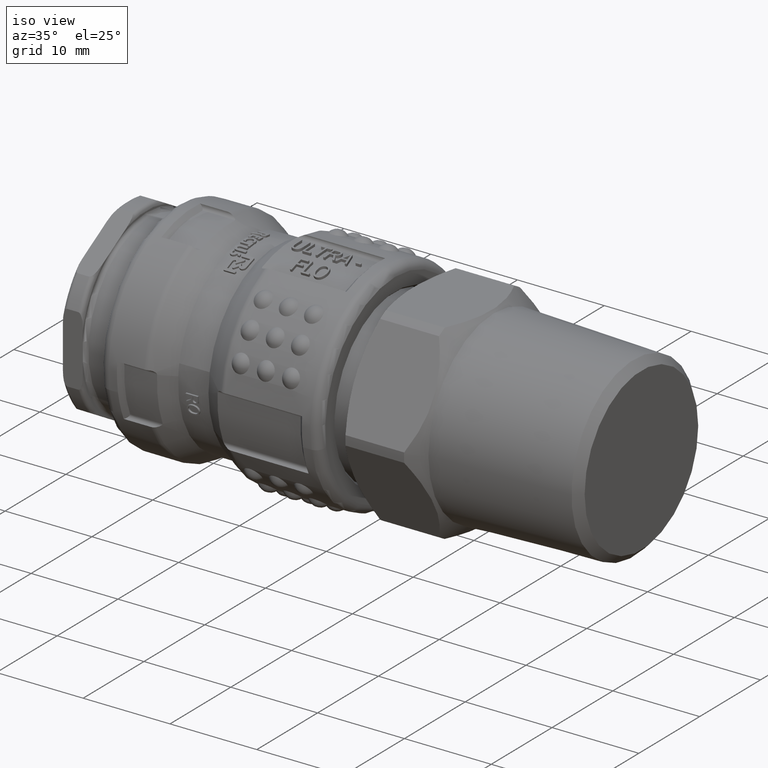
[diagram: clean part render]
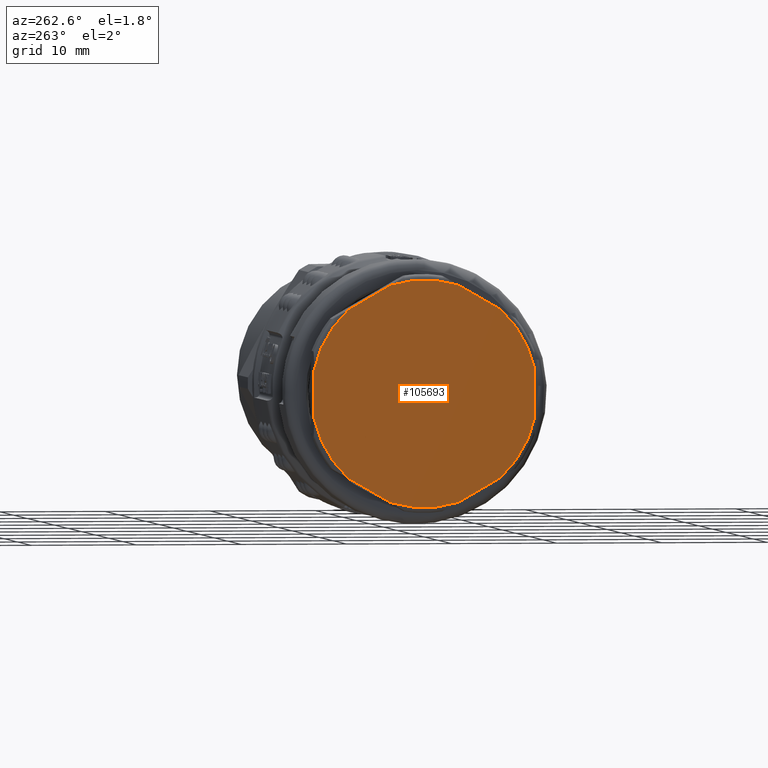
[diagram: tour spotlight — one face highlighted and labeled with its STEP entity id]
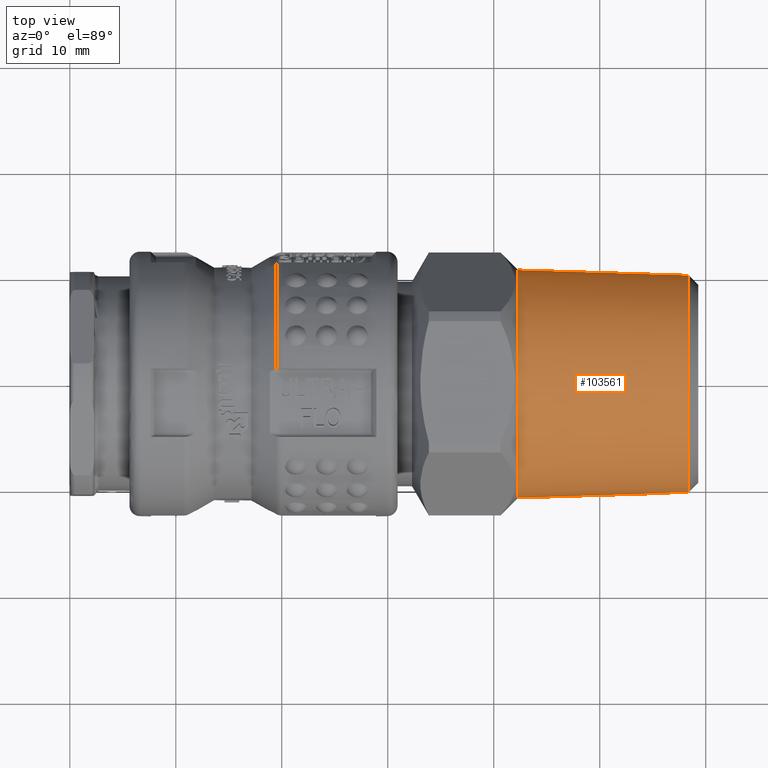
[diagram: tour spotlight — one face highlighted and labeled with its STEP entity id]
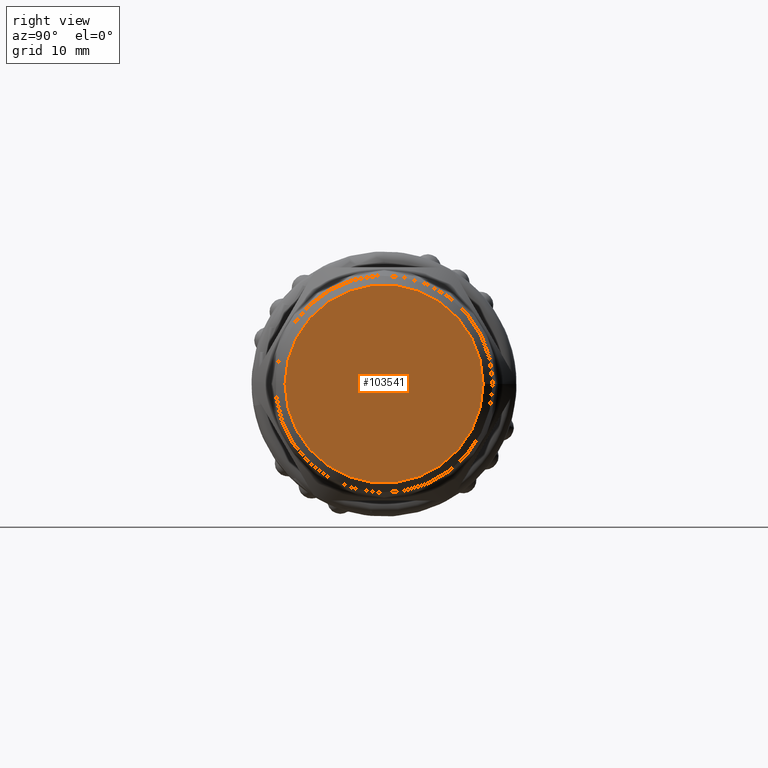
[diagram: tour spotlight — one face highlighted and labeled with its STEP entity id]
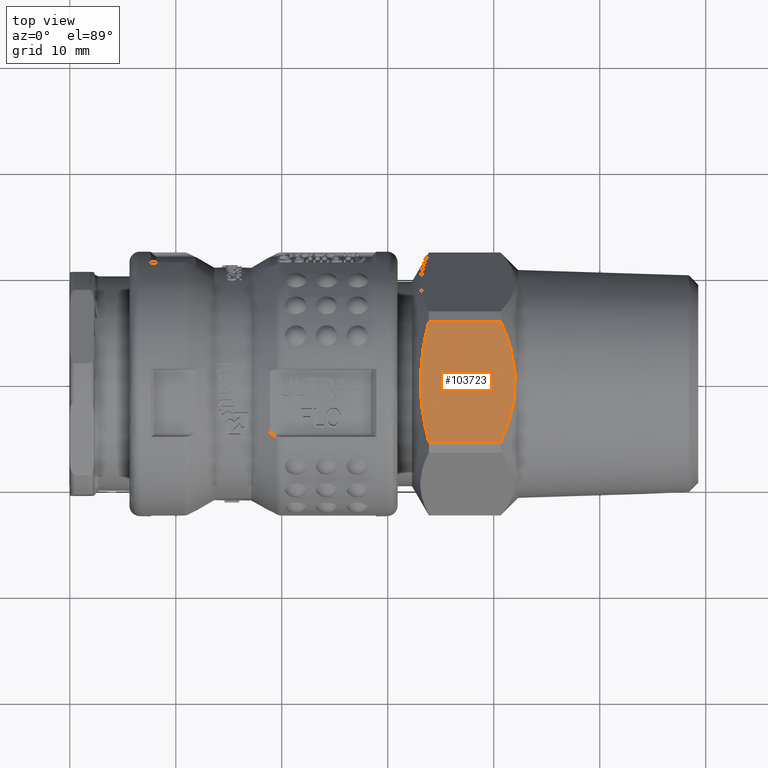
[diagram: tour spotlight — one face highlighted and labeled with its STEP entity id]
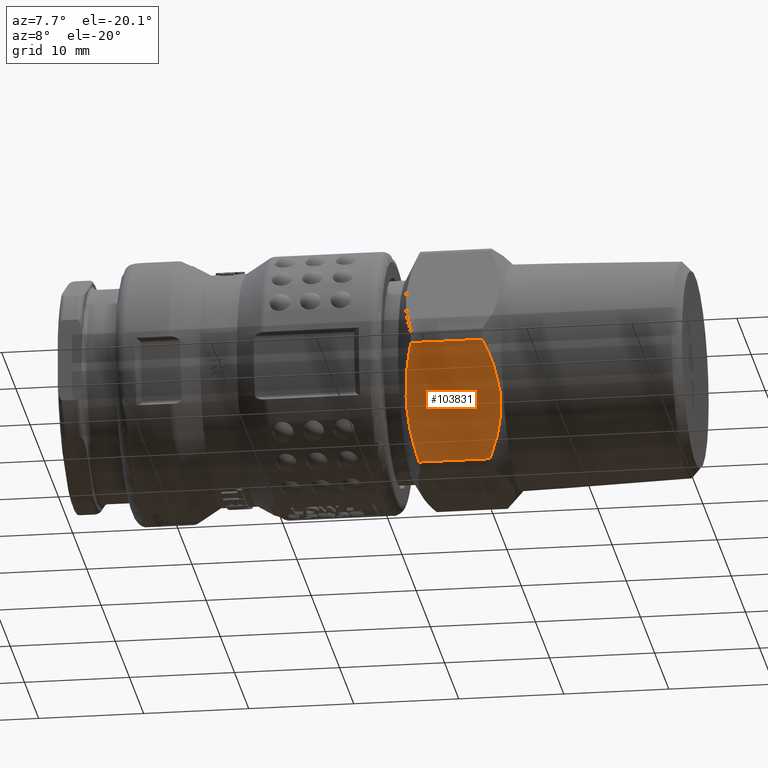
[diagram: tour spotlight — one face highlighted and labeled with its STEP entity id]
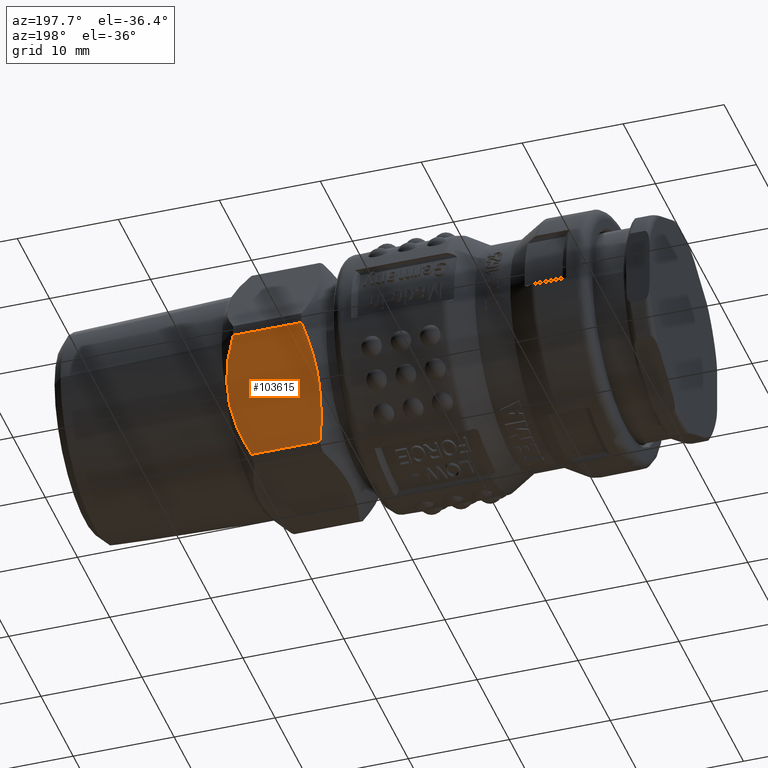
[diagram: tour spotlight — one face highlighted and labeled with its STEP entity id]
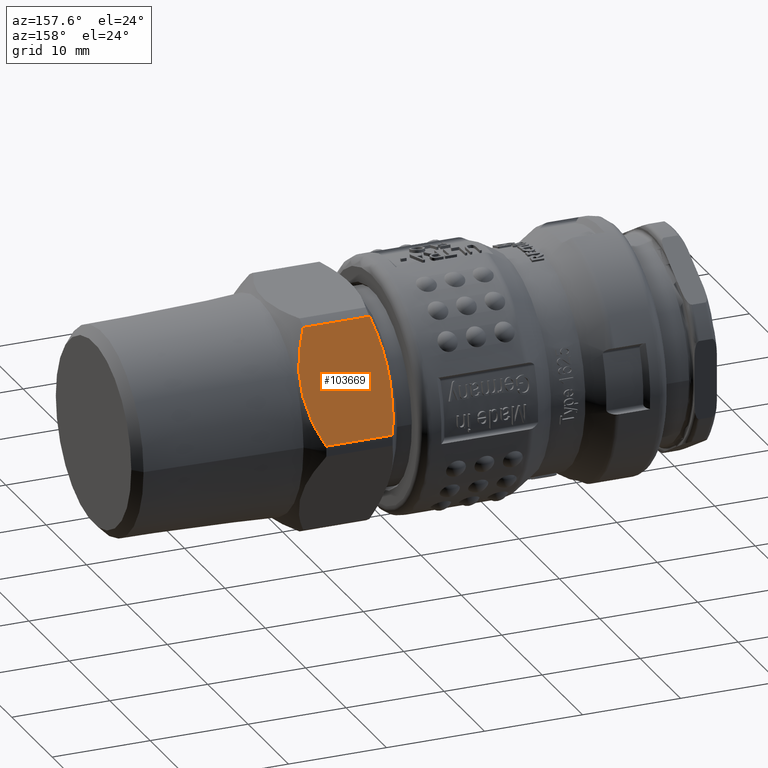
[diagram: tour spotlight — one face highlighted and labeled with its STEP entity id]
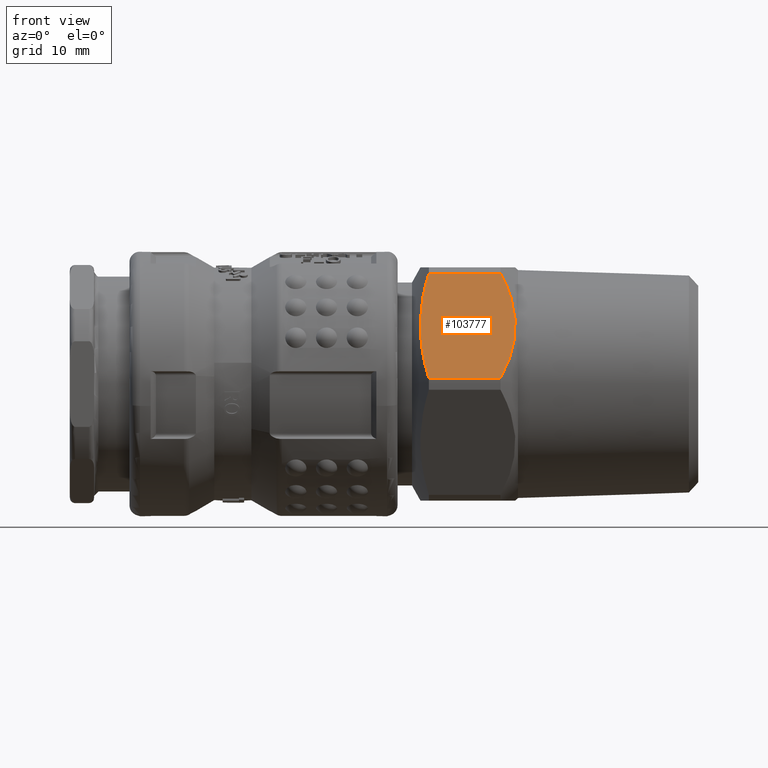
[diagram: tour spotlight — one face highlighted and labeled with its STEP entity id]
A machine part: a face-by-face anatomy tour. The part has 945 B-rep faces; the first image is the clean iso view, then the 8 largest visible faces are spotlighted one at a time (largest first), each with its STEP entity span.

Face 1 — auxiliary view, entity #105693. In plain terms, the highlighted planar face has unit normal (-1, 0, 0).
Definition (entity closure, byte-faithful):
#104371=CARTESIAN_POINT('',(0.0,7.246089927833896,-7.940823682575009));
#104372=VERTEX_POINT('',#104371);
#104373=CARTESIAN_POINT('',(0.0,3.253910072166088,-10.245709796898215));
#104374=VERTEX_POINT('',#104373);
#104375=CARTESIAN_POINT('',(-5.551115E-016,7.246089927833896,-7.940823682575011));
#104376=DIRECTION('',(0.0,-0.866025403784439,-0.499999999999999));
#104377=VECTOR('',#104376,4.609772228646418);
#104378=LINE('',#104375,#104377);
#104379=EDGE_CURVE('',#104372,#104374,#104378,.T.);
#104503=CARTESIAN_POINT('',(0.0,-3.253910072166094,-10.245709796898213));
#104504=VERTEX_POINT('',#104503);
#104505=CARTESIAN_POINT('',(0.0,-7.246089927833915,-7.940823682574992));
#104506=VERTEX_POINT('',#104505);
#104507=CARTESIAN_POINT('',(-8.326673E-016,-3.253910072166095,-10.245709796898215));
#104508=DIRECTION('',(0.0,-0.866025403784438,0.500000000000000));
#104509=VECTOR('',#104508,4.609772228646437);
#104510=LINE('',#104507,#104509);
#104511=EDGE_CURVE('',#104504,#104506,#104510,.T.);
#104635=CARTESIAN_POINT('',(0.0,-10.500000000000000,-2.304886114323217));
#104636=VERTEX_POINT('',#104635);
#104637=CARTESIAN_POINT('',(0.0,-10.500000000000000,2.304886114323220));
#104638=VERTEX_POINT('',#104637);
#104639=CARTESIAN_POINT('',(-8.326673E-016,-10.500000000000000,-2.304886114323217));
#104640=DIRECTION('',(0.0,0.0,1.0));
#104641=VECTOR('',#104640,4.609772228646438);
#104642=LINE('',#104639,#104641);
#104643=EDGE_CURVE('',#104636,#104638,#104642,.T.);
#104767=CARTESIAN_POINT('',(0.0,-7.246089927833909,7.940823682574999));
#104768=VERTEX_POINT('',#104767);
#104769=CARTESIAN_POINT('',(0.0,-3.253910072166085,10.245709796898216));
#104770=VERTEX_POINT('',#104769);
#104771=CARTESIAN_POINT('',(-8.326673E-016,-7.246089927833909,7.940823682574997));
#104772=DIRECTION('',(0.0,0.866025403784439,0.500000000000000));
#104773=VECTOR('',#104772,4.609772228646438);
#104774=LINE('',#104771,#104773);
#104775=EDGE_CURVE('',#104768,#104770,#104774,.T.);
#104899=CARTESIAN_POINT('',(0.0,3.253910072166090,10.245709796898215));
#104900=VERTEX_POINT('',#104899);
#104901=CARTESIAN_POINT('',(0.0,7.246089927833912,7.940823682574996));
#104902=VERTEX_POINT('',#104901);
#104903=CARTESIAN_POINT('',(-8.326673E-016,3.253910072166090,10.245709796898215));
#104904=DIRECTION('',(0.0,0.866025403784438,-0.500000000000000));
#104905=VECTOR('',#104904,4.609772228646436);
#104906=LINE('',#104903,#104905);
#104907=EDGE_CURVE('',#104900,#104902,#104906,.T.);
#105446=CARTESIAN_POINT('',(0.0,10.500000000000000,-2.304886114323219));
#105447=VERTEX_POINT('',#105446);
#105448=CARTESIAN_POINT('',(0.0,0.0,0.0));
#105449=DIRECTION('',(1.0,0.0,0.0));
#105450=DIRECTION('',(0.0,1.0,0.0));
#105451=AXIS2_PLACEMENT_3D('',#105448,#105449,#105450);
#105452=CIRCLE('',#105451,10.750000000000000);
#105453=EDGE_CURVE('',#104372,#105447,#105452,.T.);
#105481=CARTESIAN_POINT('',(0.0,10.500000000000000,2.304886114323219));
#105482=VERTEX_POINT('',#105481);
#105498=CARTESIAN_POINT('',(0.0,0.0,0.0));
#105499=DIRECTION('',(1.0,0.0,0.0));
#105500=DIRECTION('',(0.0,1.0,0.0));
#105501=AXIS2_PLACEMENT_3D('',#105498,#105499,#105500);
#105502=CIRCLE('',#105501,10.750000000000000);
#105503=EDGE_CURVE('',#105482,#104902,#105502,.T.);
#105516=CARTESIAN_POINT('',(0.0,0.0,0.0));
#105517=DIRECTION('',(1.0,0.0,0.0));
#105518=DIRECTION('',(0.0,1.0,0.0));
#105519=AXIS2_PLACEMENT_3D('',#105516,#105517,#105518);
#105520=CIRCLE('',#105519,10.750000000000000);
#105521=EDGE_CURVE('',#104900,#104770,#105520,.T.);
#105534=CARTESIAN_POINT('',(0.0,0.0,0.0));
#105535=DIRECTION('',(1.0,0.0,0.0));
#105536=DIRECTION('',(0.0,1.0,0.0));
#105537=AXIS2_PLACEMENT_3D('',#105534,#105535,#105536);
#105538=CIRCLE('',#105537,10.750000000000000);
#105539=EDGE_CURVE('',#104768,#104638,#105538,.T.);
#105552=CARTESIAN_POINT('',(0.0,0.0,0.0));
#105553=DIRECTION('',(1.0,0.0,0.0));
#105554=DIRECTION('',(0.0,1.0,0.0));
#105555=AXIS2_PLACEMENT_3D('',#105552,#105553,#105554);
#105556=CIRCLE('',#105555,10.750000000000000);
#105557=EDGE_CURVE('',#104636,#104506,#105556,.T.);
#105567=CARTESIAN_POINT('',(-8.326673E-016,10.500000000000000,2.304886114323219));
#105568=DIRECTION('',(0.0,0.0,-1.0));
#105569=VECTOR('',#105568,4.609772228646437);
#105570=LINE('',#105567,#105569);
#105571=EDGE_CURVE('',#105482,#105447,#105570,.T.);
#105668=CARTESIAN_POINT('',(-9.020562E-016,8.550000000000001,0.0));
#105669=DIRECTION('',(-1.0,0.0,0.0));
#105670=DIRECTION('',(0.0,0.0,1.0));
#105671=AXIS2_PLACEMENT_3D('',#105668,#105669,#105670);
#105672=PLANE('',#105671);
#105673=ORIENTED_EDGE('',*,*,#104379,.T.);
#105674=CARTESIAN_POINT('',(0.0,0.0,0.0));
#105675=DIRECTION('',(1.0,0.0,0.0));
#105676=DIRECTION('',(0.0,1.0,0.0));
#105677=AXIS2_PLACEMENT_3D('',#105674,#105675,#105676);
#105678=CIRCLE('',#105677,10.750000000000000);
#105679=EDGE_CURVE('',#104504,#104374,#105678,.T.);
#105680=ORIENTED_EDGE('',*,*,#105679,.F.);
#105681=ORIENTED_EDGE('',*,*,#104511,.T.);
#105682=ORIENTED_EDGE('',*,*,#105557,.F.);
#105683=ORIENTED_EDGE('',*,*,#104643,.T.);
#105684=ORIENTED_EDGE('',*,*,#105539,.F.);
#105685=ORIENTED_EDGE('',*,*,#104775,.T.);
#105686=ORIENTED_EDGE('',*,*,#105521,.F.);
#105687=ORIENTED_EDGE('',*,*,#104907,.T.);
#105688=ORIENTED_EDGE('',*,*,#105503,.F.);
#105689=ORIENTED_EDGE('',*,*,#105571,.T.);
#105690=ORIENTED_EDGE('',*,*,#105453,.F.);
#105691=EDGE_LOOP('',(#105673,#105680,#105681,#105682,#105683,#105684,#105685,#105686,#105687,#105688,#105689,#105690));
#105692=FACE_OUTER_BOUND('',#105691,.T.);
#105693=ADVANCED_FACE('',(#105692),#105672,.T.);

Face 2 — top view, entity #103561. In plain terms, the highlighted conical surface has half-angle 1.78 deg.
Definition (entity closure, byte-faithful):
#103521=CARTESIAN_POINT('',(58.410424631772031,10.250004193916633,8.551927E-016));
#103522=VERTEX_POINT('',#103521);
#103523=CARTESIAN_POINT('',(58.410424631772031,2.449727E-032,6.276317E-016));
#103524=DIRECTION('',(1.0,0.0,0.0));
#103525=DIRECTION('',(0.0,-1.0,0.0));
#103526=AXIS2_PLACEMENT_3D('',#103523,#103524,#103525);
#103527=CIRCLE('',#103526,10.250004193916633);
#103528=EDGE_CURVE('',#103522,#103522,#103527,.T.);
#103542=CARTESIAN_POINT('',(50.790000000000006,0.0,0.0));
#103543=DIRECTION('',(-1.0,0.0,0.0));
#103544=DIRECTION('',(0.0,1.0,0.0));
#103545=AXIS2_PLACEMENT_3D('',#103542,#103543,#103544);
#103546=CONICAL_SURFACE('',#103545,10.486823057781208,1.780000000000005);
#103547=CARTESIAN_POINT('',(42.289999999999999,10.750976361582183,-4.196243E-016));
#103548=VERTEX_POINT('',#103547);
#103549=CARTESIAN_POINT('',(42.289999999999999,0.0,0.0));
#103550=DIRECTION('',(-1.0,0.0,0.0));
#103551=DIRECTION('',(0.0,1.0,0.0));
#103552=AXIS2_PLACEMENT_3D('',#103549,#103550,#103551);
#103553=CIRCLE('',#103552,10.750976361582183);
#103554=EDGE_CURVE('',#103548,#103548,#103553,.T.);
#103555=ORIENTED_EDGE('',*,*,#103554,.F.);
#103556=EDGE_LOOP('',(#103555));
#103557=FACE_OUTER_BOUND('',#103556,.T.);
#103558=ORIENTED_EDGE('',*,*,#103528,.F.);
#103559=EDGE_LOOP('',(#103558));
#103560=FACE_BOUND('',#103559,.T.);
#103561=ADVANCED_FACE('',(#103557,#103560),#103546,.T.);

Face 3 — right view, entity #103541. In plain terms, the highlighted planar face has unit normal (1, 0, 0).
Definition (entity closure, byte-faithful):
#103510=CARTESIAN_POINT('',(59.290000000000006,9.342669753980239,-1.508803E-015));
#103511=VERTEX_POINT('',#103510);
#103512=CARTESIAN_POINT('',(59.290000000000006,0.0,0.0));
#103513=DIRECTION('',(-1.0,0.0,0.0));
#103514=DIRECTION('',(0.0,-1.0,0.0));
#103515=AXIS2_PLACEMENT_3D('',#103512,#103513,#103514);
#103516=CIRCLE('',#103515,9.342669753980239);
#103517=EDGE_CURVE('',#103511,#103511,#103516,.T.);
#103533=CARTESIAN_POINT('',(59.290000000000006,8.611334876990121,-3.361114E-016));
#103534=DIRECTION('',(1.0,0.0,0.0));
#103535=DIRECTION('',(0.0,0.0,-1.0));
#103536=AXIS2_PLACEMENT_3D('',#103533,#103534,#103535);
#103537=PLANE('',#103536);
#103538=ORIENTED_EDGE('',*,*,#103517,.F.);
#103539=EDGE_LOOP('',(#103538));
#103540=FACE_OUTER_BOUND('',#103539,.T.);
#103541=ADVANCED_FACE('',(#103540),#103537,.T.);

Face 4 — top view, entity #103723. In plain terms, the highlighted planar face has unit normal (0, 0, -1).
Definition (entity closure, byte-faithful):
#103670=CARTESIAN_POINT('',(44.115189136583979,-1.235990E-015,11.000000000000005));
#103671=DIRECTION('',(0.0,0.0,-1.0));
#103672=DIRECTION('',(1.0,0.0,0.0));
#103673=AXIS2_PLACEMENT_3D('',#103670,#103671,#103672);
#103674=PLANE('',#103673);
#103675=CARTESIAN_POINT('',(40.640976361582176,5.723635208501663,11.000000000000005));
#103676=VERTEX_POINT('',#103675);
#103677=CARTESIAN_POINT('',(40.640976361582176,-5.723635208501667,11.000000000000005));
#103678=VERTEX_POINT('',#103677);
#103679=CARTESIAN_POINT('',(40.640976361582176,5.723635208501667,11.000000000000005));
#103680=CARTESIAN_POINT('',(43.282911845453143,-1.791102E-015,11.000000000000005));
#103681=CARTESIAN_POINT('',(40.640976361582176,-5.723635208501672,11.000000000000005));
#103689=(BOUNDED_CURVE()B_SPLINE_CURVE(2,(#103679,#103680,#103681),.UNSPECIFIED.,.F.,.U.)B_SPLINE_CURVE_WITH_KNOTS((3,3),(0.0,1.178473589012498),.UNSPECIFIED.)CURVE()GEOMETRIC_REPRESENTATION_ITEM()RATIONAL_B_SPLINE_CURVE((1.0,1.127272727272730,1.0))REPRESENTATION_ITEM(''));
#103690=EDGE_CURVE('',#103676,#103678,#103689,.T.);
#103691=ORIENTED_EDGE('',*,*,#103690,.F.);
#103692=CARTESIAN_POINT('',(33.877713240271476,5.723635208501667,11.000000000000005));
#103693=VERTEX_POINT('',#103692);
#103694=CARTESIAN_POINT('',(33.877713240271476,5.723635208501667,11.000000000000005));
#103695=DIRECTION('',(1.0,0.0,0.0));
#103696=VECTOR('',#103695,6.763263121310715);
#103697=LINE('',#103694,#103696);
#103698=EDGE_CURVE('',#103693,#103676,#103697,.T.);
#103699=ORIENTED_EDGE('',*,*,#103698,.F.);
#103700=CARTESIAN_POINT('',(33.877713240271476,-5.723635208501672,11.000000000000005));
#103701=VERTEX_POINT('',#103700);
#103702=CARTESIAN_POINT('',(33.877713240271476,-5.723635208501649,11.000000000000005));
#103703=CARTESIAN_POINT('',(32.352391077476959,8.555252E-015,11.000000000000005));
#103704=CARTESIAN_POINT('',(33.877713240271476,5.723635208501645,11.000000000000005));
#103712=(BOUNDED_CURVE()B_SPLINE_CURVE(2,(#103702,#103703,#103704),.UNSPECIFIED.,.F.,.U.)B_SPLINE_CURVE_WITH_KNOTS((3,3),(0.0,1.156085348637081),.UNSPECIFIED.)CURVE()GEOMETRIC_REPRESENTATION_ITEM()RATIONAL_B_SPLINE_CURVE((1.0,1.127272727272729,1.0))REPRESENTATION_ITEM(''));
#103713=EDGE_CURVE('',#103701,#103693,#103712,.T.);
#103714=ORIENTED_EDGE('',*,*,#103713,.F.);
#103715=CARTESIAN_POINT('',(40.640976361582190,-5.723635208501672,11.000000000000005));
#103716=DIRECTION('',(-1.0,0.0,0.0));
#103717=VECTOR('',#103716,6.763263121310715);
#103718=LINE('',#103715,#103717);
#103719=EDGE_CURVE('',#103678,#103701,#103718,.T.);
#103720=ORIENTED_EDGE('',*,*,#103719,.F.);
#103721=EDGE_LOOP('',(#103691,#103699,#103714,#103720));
#103722=FACE_OUTER_BOUND('',#103721,.T.);
#103723=ADVANCED_FACE('',(#103722),#103674,.F.);

Face 5 — auxiliary view, entity #103831. In plain terms, the highlighted planar face has unit normal (0, 0.866, 0.5).
Definition (entity closure, byte-faithful):
#103778=CARTESIAN_POINT('',(44.115189136583979,-9.526279441628828,-5.500000000000003));
#103779=DIRECTION('',(1.267341E-016,0.866025403784439,0.500000000000000));
#103780=DIRECTION('',(1.0,0.0,0.0));
#103781=AXIS2_PLACEMENT_3D('',#103778,#103779,#103780);
#103782=PLANE('',#103781);
#103783=CARTESIAN_POINT('',(40.640976361582176,-12.388097045879663,-0.543186507442515));
#103784=VERTEX_POINT('',#103783);
#103785=CARTESIAN_POINT('',(40.640976361582176,-6.664461837377993,-10.456813492557490));
#103786=VERTEX_POINT('',#103785);
#103787=CARTESIAN_POINT('',(40.640976361582176,-12.388097045879665,-0.543186507442511));
#103788=CARTESIAN_POINT('',(43.282911845453143,-9.526279441628827,-5.500000000000004));
#103789=CARTESIAN_POINT('',(40.640976361582176,-6.664461837377989,-10.456813492557496));
#103797=(BOUNDED_CURVE()B_SPLINE_CURVE(2,(#103787,#103788,#103789),.UNSPECIFIED.,.F.,.U.)B_SPLINE_CURVE_WITH_KNOTS((3,3),(0.0,1.178473589012499),.UNSPECIFIED.)CURVE()GEOMETRIC_REPRESENTATION_ITEM()RATIONAL_B_SPLINE_CURVE((1.0,1.127272727272726,1.0))REPRESENTATION_ITEM(''));
#103798=EDGE_CURVE('',#103784,#103786,#103797,.T.);
#103799=ORIENTED_EDGE('',*,*,#103798,.F.);
#103800=CARTESIAN_POINT('',(33.877713240271476,-12.388097045879665,-0.543186507442511));
#103801=VERTEX_POINT('',#103800);
#103802=CARTESIAN_POINT('',(33.877713240271476,-12.388097045879665,-0.543186507442511));
#103803=DIRECTION('',(1.0,0.0,0.0));
#103804=VECTOR('',#103803,6.763263121310715);
#103805=LINE('',#103802,#103804);
#103806=EDGE_CURVE('',#103801,#103784,#103805,.T.);
#103807=ORIENTED_EDGE('',*,*,#103806,.F.);
#103808=CARTESIAN_POINT('',(33.877713240271476,-6.664461837377989,-10.456813492557494));
#103809=VERTEX_POINT('',#103808);
#103810=CARTESIAN_POINT('',(33.877713240271476,-6.664461837378002,-10.456813492557473));
#103811=CARTESIAN_POINT('',(32.352391077476959,-9.526279441628828,-5.499999999999999));
#103812=CARTESIAN_POINT('',(33.877713240271476,-12.388097045879654,-0.543186507442529));
#103820=(BOUNDED_CURVE()B_SPLINE_CURVE(2,(#103810,#103811,#103812),.UNSPECIFIED.,.F.,.U.)B_SPLINE_CURVE_WITH_KNOTS((3,3),(0.0,1.156085348637082),.UNSPECIFIED.)CURVE()GEOMETRIC_REPRESENTATION_ITEM()RATIONAL_B_SPLINE_CURVE((1.0,1.127272727272735,1.0))REPRESENTATION_ITEM(''));
#103821=EDGE_CURVE('',#103809,#103801,#103820,.T.);
#103822=ORIENTED_EDGE('',*,*,#103821,.F.);
#103823=CARTESIAN_POINT('',(40.640976361582190,-6.664461837377989,-10.456813492557494));
#103824=DIRECTION('',(-1.0,0.0,0.0));
#103825=VECTOR('',#103824,6.763263121310715);
#103826=LINE('',#103823,#103825);
#103827=EDGE_CURVE('',#103786,#103809,#103826,.T.);
#103828=ORIENTED_EDGE('',*,*,#103827,.F.);
#103829=EDGE_LOOP('',(#103799,#103807,#103822,#103828));
#103830=FACE_OUTER_BOUND('',#103829,.T.);
#103831=ADVANCED_FACE('',(#103830),#103782,.F.);

Face 6 — auxiliary view, entity #103615. In plain terms, the highlighted planar face has unit normal (0, -0.866, 0.5).
Definition (entity closure, byte-faithful):
#103562=CARTESIAN_POINT('',(44.115189136583979,9.526279441628834,-5.499999999999994));
#103563=DIRECTION('',(1.267341E-016,-0.866025403784439,0.499999999999999));
#103564=DIRECTION('',(1.0,0.0,0.0));
#103565=AXIS2_PLACEMENT_3D('',#103562,#103563,#103564);
#103566=PLANE('',#103565);
#103567=CARTESIAN_POINT('',(40.640976361582176,6.664461837378002,-10.456813492557483));
#103568=VERTEX_POINT('',#103567);
#103569=CARTESIAN_POINT('',(40.640976361582176,12.388097045879663,-0.543186507442503));
#103570=VERTEX_POINT('',#103569);
#103571=CARTESIAN_POINT('',(40.640976361582176,6.664461837378005,-10.456813492557483));
#103572=CARTESIAN_POINT('',(43.282911845453143,9.526279441628837,-5.499999999999993));
#103573=CARTESIAN_POINT('',(40.640976361582176,12.388097045879665,-0.543186507442505));
#103581=(BOUNDED_CURVE()B_SPLINE_CURVE(2,(#103571,#103572,#103573),.UNSPECIFIED.,.F.,.U.)B_SPLINE_CURVE_WITH_KNOTS((3,3),(0.0,1.178473589012498),.UNSPECIFIED.)CURVE()GEOMETRIC_REPRESENTATION_ITEM()RATIONAL_B_SPLINE_CURVE((1.0,1.127272727272726,1.0))REPRESENTATION_ITEM(''));
#103582=EDGE_CURVE('',#103568,#103570,#103581,.T.);
#103583=ORIENTED_EDGE('',*,*,#103582,.F.);
#103584=CARTESIAN_POINT('',(33.877713240271476,6.664461837377999,-10.456813492557488));
#103585=VERTEX_POINT('',#103584);
#103586=CARTESIAN_POINT('',(33.877713240271476,6.664461837377999,-10.456813492557488));
#103587=DIRECTION('',(1.0,0.0,0.0));
#103588=VECTOR('',#103587,6.763263121310715);
#103589=LINE('',#103586,#103588);
#103590=EDGE_CURVE('',#103585,#103568,#103589,.T.);
#103591=ORIENTED_EDGE('',*,*,#103590,.F.);
#103592=CARTESIAN_POINT('',(33.877713240271476,12.388097045879665,-0.543186507442501));
#103593=VERTEX_POINT('',#103592);
#103594=CARTESIAN_POINT('',(33.877713240271476,12.388097045879654,-0.543186507442518));
#103595=CARTESIAN_POINT('',(32.352391077476959,9.526279441628828,-5.499999999999998));
#103596=CARTESIAN_POINT('',(33.877713240271476,6.664461837378013,-10.456813492557465));
#103604=(BOUNDED_CURVE()B_SPLINE_CURVE(2,(#103594,#103595,#103596),.UNSPECIFIED.,.F.,.U.)B_SPLINE_CURVE_WITH_KNOTS((3,3),(0.0,1.156085348637082),.UNSPECIFIED.)CURVE()GEOMETRIC_REPRESENTATION_ITEM()RATIONAL_B_SPLINE_CURVE((1.0,1.127272727272722,1.0))REPRESENTATION_ITEM(''));
#103605=EDGE_CURVE('',#103593,#103585,#103604,.T.);
#103606=ORIENTED_EDGE('',*,*,#103605,.F.);
#103607=CARTESIAN_POINT('',(40.640976361582190,12.388097045879665,-0.543186507442501));
#103608=DIRECTION('',(-1.0,0.0,0.0));
#103609=VECTOR('',#103608,6.763263121310715);
#103610=LINE('',#103607,#103609);
#103611=EDGE_CURVE('',#103570,#103593,#103610,.T.);
#103612=ORIENTED_EDGE('',*,*,#103611,.F.);
#103613=EDGE_LOOP('',(#103583,#103591,#103606,#103612));
#103614=FACE_OUTER_BOUND('',#103613,.T.);
#103615=ADVANCED_FACE('',(#103614),#103566,.F.);

Face 7 — auxiliary view, entity #103669. In plain terms, the highlighted planar face has unit normal (0, -0.866, -0.5).
Definition (entity closure, byte-faithful):
#103616=CARTESIAN_POINT('',(44.115189136583979,9.526279441628825,5.500000000000006));
#103617=DIRECTION('',(1.267341E-016,-0.866025403784438,-0.500000000000000));
#103618=DIRECTION('',(1.0,0.0,0.0));
#103619=AXIS2_PLACEMENT_3D('',#103616,#103617,#103618);
#103620=PLANE('',#103619);
#103621=CARTESIAN_POINT('',(40.640976361582176,12.388097045879663,0.543186507442516));
#103622=VERTEX_POINT('',#103621);
#103623=CARTESIAN_POINT('',(40.640976361582176,6.664461837377984,10.456813492557496));
#103624=VERTEX_POINT('',#103623);
#103625=CARTESIAN_POINT('',(40.640976361582176,12.388097045879665,0.543186507442511));
#103626=CARTESIAN_POINT('',(43.282911845453150,9.526279441628823,5.500000000000009));
#103627=CARTESIAN_POINT('',(40.640976361582176,6.664461837377981,10.456813492557501));
#103635=(BOUNDED_CURVE()B_SPLINE_CURVE(2,(#103625,#103626,#103627),.UNSPECIFIED.,.F.,.U.)B_SPLINE_CURVE_WITH_KNOTS((3,3),(0.0,1.178473589012500),.UNSPECIFIED.)CURVE()GEOMETRIC_REPRESENTATION_ITEM()RATIONAL_B_SPLINE_CURVE((1.0,1.127272727272726,1.0))REPRESENTATION_ITEM(''));
#103636=EDGE_CURVE('',#103622,#103624,#103635,.T.);
#103637=ORIENTED_EDGE('',*,*,#103636,.F.);
#103638=CARTESIAN_POINT('',(33.877713240271476,12.388097045879665,0.543186507442513));
#103639=VERTEX_POINT('',#103638);
#103640=CARTESIAN_POINT('',(33.877713240271476,12.388097045879665,0.543186507442513));
#103641=DIRECTION('',(1.0,0.0,0.0));
#103642=VECTOR('',#103641,6.763263121310715);
#103643=LINE('',#103640,#103642);
#103644=EDGE_CURVE('',#103639,#103622,#103643,.T.);
#103645=ORIENTED_EDGE('',*,*,#103644,.F.);
#103646=CARTESIAN_POINT('',(33.877713240271476,6.664461837377981,10.456813492557499));
#103647=VERTEX_POINT('',#103646);
#103648=CARTESIAN_POINT('',(33.877713240271476,6.664461837377990,10.456813492557481));
#103649=CARTESIAN_POINT('',(32.352391077476952,9.526279441628820,5.500000000000009));
#103650=CARTESIAN_POINT('',(33.877713240271476,12.388097045879654,0.543186507442530));
#103658=(BOUNDED_CURVE()B_SPLINE_CURVE(2,(#103648,#103649,#103650),.UNSPECIFIED.,.F.,.U.)B_SPLINE_CURVE_WITH_KNOTS((3,3),(0.0,1.156085348637083),.UNSPECIFIED.)CURVE()GEOMETRIC_REPRESENTATION_ITEM()RATIONAL_B_SPLINE_CURVE((1.0,1.127272727272728,1.0))REPRESENTATION_ITEM(''));
#103659=EDGE_CURVE('',#103647,#103639,#103658,.T.);
#103660=ORIENTED_EDGE('',*,*,#103659,.F.);
#103661=CARTESIAN_POINT('',(40.640976361582190,6.664461837377981,10.456813492557499));
#103662=DIRECTION('',(-1.0,0.0,0.0));
#103663=VECTOR('',#103662,6.763263121310715);
#103664=LINE('',#103661,#103663);
#103665=EDGE_CURVE('',#103624,#103647,#103664,.T.);
#103666=ORIENTED_EDGE('',*,*,#103665,.F.);
#103667=EDGE_LOOP('',(#103637,#103645,#103660,#103666));
#103668=FACE_OUTER_BOUND('',#103667,.T.);
#103669=ADVANCED_FACE('',(#103668),#103620,.F.);

Face 8 — front view, entity #103777. In plain terms, the highlighted planar face has unit normal (0, 0.866, -0.5).
Definition (entity closure, byte-faithful):
#103724=CARTESIAN_POINT('',(44.115189136583979,-9.526279441628828,5.500000000000000));
#103725=DIRECTION('',(1.267341E-016,0.866025403784439,-0.500000000000000));
#103726=DIRECTION('',(1.0,0.0,0.0));
#103727=AXIS2_PLACEMENT_3D('',#103724,#103725,#103726);
#103728=PLANE('',#103727);
#103729=CARTESIAN_POINT('',(40.640976361582176,-6.664461837377997,10.456813492557488));
#103730=VERTEX_POINT('',#103729);
#103731=CARTESIAN_POINT('',(40.640976361582176,-12.388097045879665,0.543186507442511));
#103732=VERTEX_POINT('',#103731);
#103733=CARTESIAN_POINT('',(40.640976361582176,-6.664461837377998,10.456813492557488));
#103734=CARTESIAN_POINT('',(43.282911845453143,-9.526279441628830,5.500000000000000));
#103735=CARTESIAN_POINT('',(40.640976361582176,-12.388097045879663,0.543186507442513));
#103743=(BOUNDED_CURVE()B_SPLINE_CURVE(2,(#103733,#103734,#103735),.UNSPECIFIED.,.F.,.U.)B_SPLINE_CURVE_WITH_KNOTS((3,3),(0.0,1.178473589012497),.UNSPECIFIED.)CURVE()GEOMETRIC_REPRESENTATION_ITEM()RATIONAL_B_SPLINE_CURVE((1.0,1.127272727272726,1.0))REPRESENTATION_ITEM(''));
#103744=EDGE_CURVE('',#103730,#103732,#103743,.T.);
#103745=ORIENTED_EDGE('',*,*,#103744,.F.);
#103746=CARTESIAN_POINT('',(33.877713240271476,-6.664461837377993,10.456813492557490));
#103747=VERTEX_POINT('',#103746);
#103748=CARTESIAN_POINT('',(33.877713240271476,-6.664461837377993,10.456813492557490));
#103749=DIRECTION('',(1.0,0.0,0.0));
#103750=VECTOR('',#103749,6.763263121310715);
#103751=LINE('',#103748,#103750);
#103752=EDGE_CURVE('',#103747,#103730,#103751,.T.);
#103753=ORIENTED_EDGE('',*,*,#103752,.F.);
#103754=CARTESIAN_POINT('',(33.877713240271476,-12.388097045879665,0.543186507442508));
#103755=VERTEX_POINT('',#103754);
#103756=CARTESIAN_POINT('',(33.877713240271476,-12.388097045879654,0.543186507442524));
#103757=CARTESIAN_POINT('',(32.352391077476959,-9.526279441628827,5.500000000000002));
#103758=CARTESIAN_POINT('',(33.877713240271476,-6.664461837378003,10.456813492557476));
#103766=(BOUNDED_CURVE()B_SPLINE_CURVE(2,(#103756,#103757,#103758),.UNSPECIFIED.,.F.,.U.)B_SPLINE_CURVE_WITH_KNOTS((3,3),(0.0,1.156085348637082),.UNSPECIFIED.)CURVE()GEOMETRIC_REPRESENTATION_ITEM()RATIONAL_B_SPLINE_CURVE((1.0,1.127272727272735,1.0))REPRESENTATION_ITEM(''));
#103767=EDGE_CURVE('',#103755,#103747,#103766,.T.);
#103768=ORIENTED_EDGE('',*,*,#103767,.F.);
#103769=CARTESIAN_POINT('',(40.640976361582190,-12.388097045879665,0.543186507442508));
#103770=DIRECTION('',(-1.0,0.0,0.0));
#103771=VECTOR('',#103770,6.763263121310715);
#103772=LINE('',#103769,#103771);
#103773=EDGE_CURVE('',#103732,#103755,#103772,.T.);
#103774=ORIENTED_EDGE('',*,*,#103773,.F.);
#103775=EDGE_LOOP('',(#103745,#103753,#103768,#103774));
#103776=FACE_OUTER_BOUND('',#103775,.T.);
#103777=ADVANCED_FACE('',(#103776),#103728,.F.);